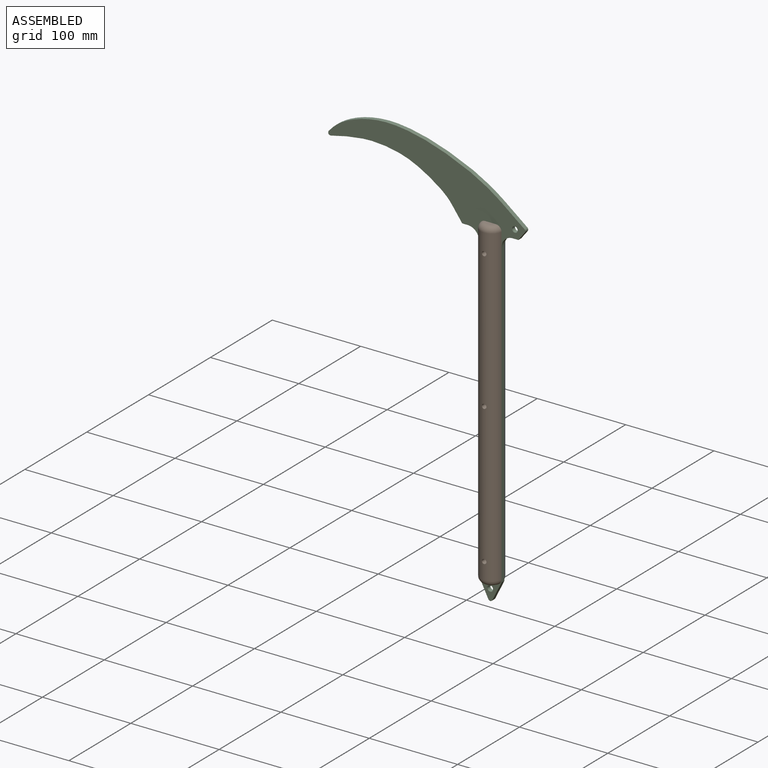
[diagram: assembled view]
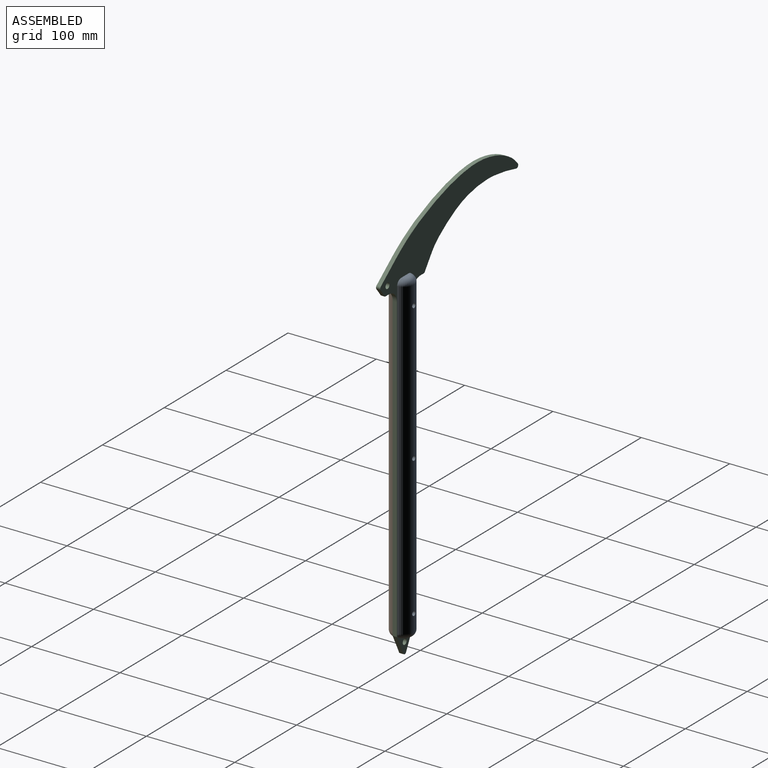
[diagram: assembled view, second angle]
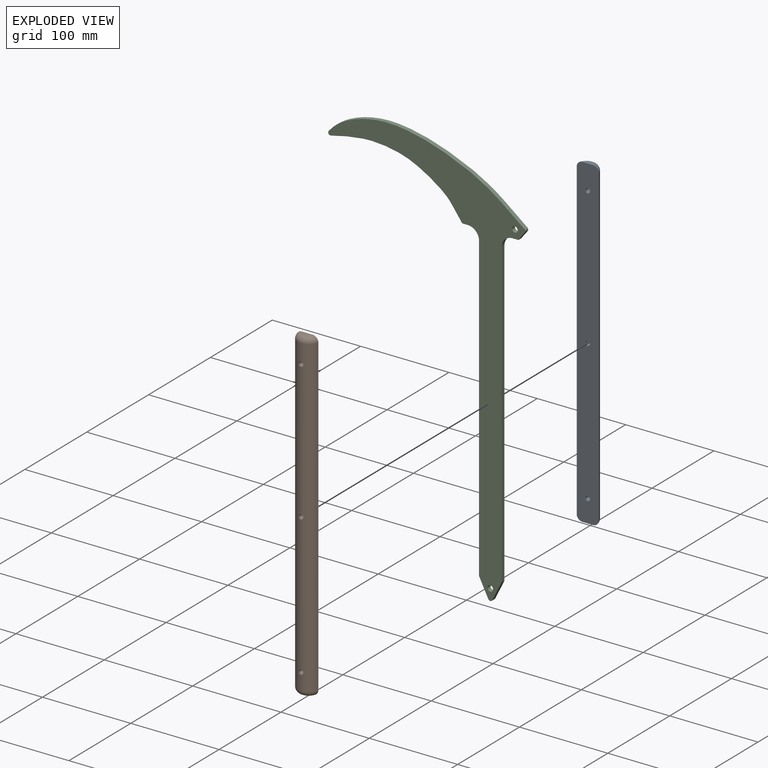
[diagram: exploded view]
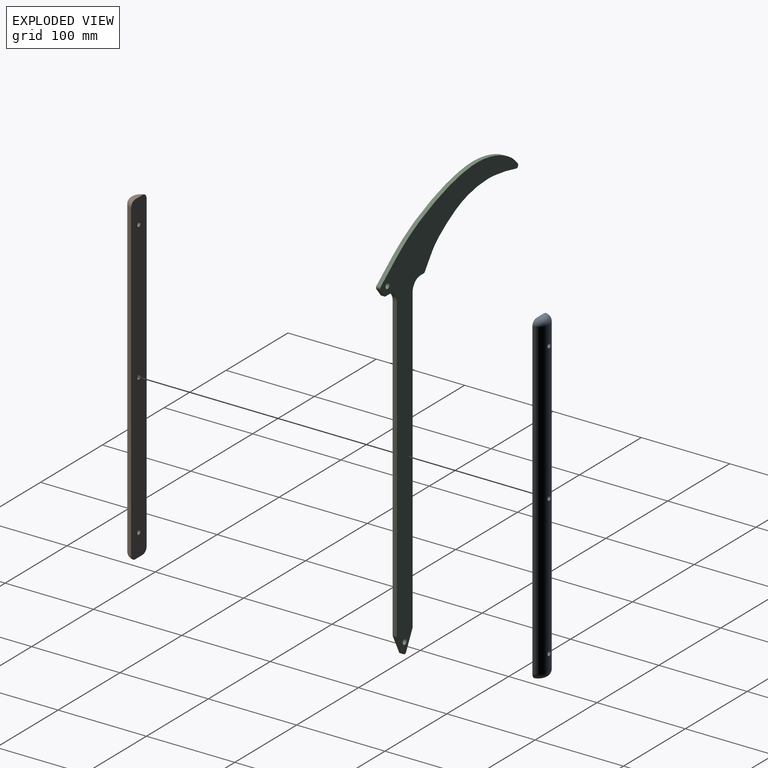
[diagram: exploded view, second angle]
ASSEMBLY  parts=3 mates=2
PART A: 9 faces, bbox 27x13.4x368.3 mm
  f0: plane 368.3x24.99mm, normal (0,1,0), area 9105.9mm2, adj f1,f2,f3,f4,f5,f6,f7,f8
  f1: cylinder r=12.7mm len=355.6mm, axis (0,0,-1), area 12492.1mm2, adj f0,f4,f5,f6,f7,f8
  f2: plane 11.85x4.06mm, normal (0,0,1), area 34.9mm2, adj f0,f5
  f3: plane 11.85x4.06mm, normal (0,0,-1), area 34.9mm2, adj f0,f4
  f4: torus R=6.35mm, axis (0,0,1), area 279.6mm2, adj f0,f1,f3
  f5: torus R=6.35mm, axis (0,0,1), area 279.6mm2, adj f0,f1,f2
  f6: cylinder r=2.54mm len=10.41mm, axis (0,1,0), area 164.2mm2, adj f0,f1
  f7: cylinder r=2.54mm len=10.41mm, axis (0,1,0), area 164.2mm2, adj f0,f1
  f8: cylinder r=2.54mm len=10.41mm, axis (0,1,0), area 164.2mm2, adj f0,f1
PART B: same geometry as A
PART C: 19 faces, bbox 223.1x4.8x458.9 mm
  f0: extruded ~148.47x57.06mm, area 805.9mm2, adj f1,f8,f9,f18
  f1: plane 6.35x4.76mm, normal (0,0,-1), area 30.2mm2, adj f0,f8,f9,f10
  f2: plane 342.9x4.76mm, normal (-1,0,0), area 1633.1mm2, adj f8,f9,f10,f12
  f3: plane 342.9x4.76mm, normal (1,0,0), area 1633.1mm2, adj f8,f9,f11,f13
  f4: plane 6.35x4.76mm, normal (0,0,-1), area 30.2mm2, adj f5,f8,f9,f11
  f5: plane 9.36x7.32mm, normal (0.79,0,-0.62), area 56.6mm2, adj f4,f8,f9,f17
  f6: plane 24.71x19.34mm, normal (0.62,0,0.79), area 149.4mm2, adj f7,f8,f9,f17
  f7: extruded ~196.84x48.2mm, area 1023.2mm2, adj f6,f8,f9,f18
  f8: plane 458.88x223.11mm, normal (0,-1,0), area 16266.5mm2, adj f0,f1,f2,f3,f4,f5,f6,f7
  f9: plane 458.88x223.11mm, normal (0,1,0), area 16266.5mm2, adj f0,f1,f2,f3,f4,f5,f6,f7
  f10: cylinder r=12.7mm len=12.7mm, axis (0,1,0), area 95mm2, adj f1,f2,f8,f9
  f11: cylinder r=12.7mm len=12.7mm, axis (0,-1,0), area 95mm2, adj f3,f4,f8,f9
  f12: plane 20.86x10.43mm, normal (-0.89,0,-0.45), area 111.1mm2, adj f2,f8,f9,f16
  f13: plane 20.86x10.43mm, normal (0.89,0,-0.45), area 111.1mm2, adj f3,f8,f9,f16
  f14: cylinder r=3.17mm len=6.35mm, axis (0,-1,0), area 95mm2, adj f8,f9
  f15: cylinder r=3.17mm len=6.35mm, axis (0,-1,0), area 95mm2, adj f8,f9
  f16: cylinder r=2.54mm len=4.76mm, axis (0,1,0), area 26.8mm2, adj f8,f9,f12,f13
  f17: cylinder r=2.54mm len=4.76mm, axis (0,1,0), area 19mm2, adj f5,f6,f8,f9
  f18: cylinder r=2.54mm len=4.76mm, axis (0,1,0), area 30.8mm2, adj f0,f7,f8,f9
PLACE A rot(axis=(0,0,1),180deg) t=(28.37,0.1,-358.9)mm
PLACE B t=(28.78,-0.1,-358.9)mm
PLACE C t=(28.58,2.38,0.37)mm
MATE fastened B.f0 <-> C.f8  axis (0,1,0) through (41.28,-2.38,-352.55)mm
MATE fastened A.f0 <-> C.f9  axis (0,-1,0) through (15.87,2.38,-352.55)mm
